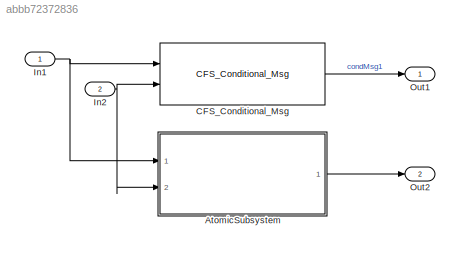
MODEL slx_abbb72372836
KIND model
CONFIG AbsTol = auto
CONFIG EnableMultiTasking = off
CONFIG FixedStep = 1
CONFIG MaxStep = auto
CONFIG MinStep = auto
CONFIG PreLoadFcn = load test_data.mat;
CONFIG RelTol = 1e-3
CONFIG SampleTimeConstraint = Unconstrained
CONFIG Solver = FixedStepDiscrete
CONFIG SolverName = FixedStepDiscrete
CONFIG StartTime = 0.0
CONFIG StopTime = 1
WORKSPACE source: MATLAB code (in-file)
WORKSPACE cmdLim = Simulink.Parameter
WORKSPACE code: cmdLim.Value = 15;
WORKSPACE code: cmdLim.Description = 'Limit for controlling the maximum surface command angle.';
WORKSPACE code: cmdLim.Min = 0;
WORKSPACE code: cmdLim.Max = 90;
WORKSPACE code: cmdLim.DocUnits = 'deg';
WORKSPACE dispGain = Simulink.Parameter
WORKSPACE code: dispGain.Value = 0.75;
WORKSPACE code: dispGain.Description = 'Gain applied to the displacement error.';
WORKSPACE code: dispGain.Min = 0;
WORKSPACE code: dispGain.Max = [];
WORKSPACE code: dispGain.DocUnits = 'deg/sec/deg';
WORKSPACE dispLim = Simulink.Parameter
WORKSPACE code: dispLim.Value = 30;
WORKSPACE code: dispLim.Description = 'Limit for controlling the maximum commanded angle.';
WORKSPACE code: dispLim.Min = 0;
WORKSPACE code: dispLim.Max = 180;
WORKSPACE code: dispLim.DocUnits = 'deg';
WORKSPACE intGain = Simulink.Parameter
WORKSPACE code: intGain.Value = 0.5;
WORKSPACE code: intGain.Description = 'Gain applied to the integral error.';
WORKSPACE code: intGain.Min = 0;
WORKSPACE code: intGain.Max = [];
WORKSPACE code: intGain.DocUnits = 'deg/sec/deg/sec';
WORKSPACE intLim = Simulink.Parameter
WORKSPACE code: intLim.Value = 5;
WORKSPACE code: intLim.Description = 'Limit for controlling the maximum commanded angle.';
WORKSPACE code: intLim.Min = 0;
WORKSPACE code: intLim.Max = 90;
WORKSPACE code: intLim.DocUnits = 'deg';
WORKSPACE rateGain = Simulink.Parameter
WORKSPACE code: rateGain.Value = 2;
WORKSPACE code: rateGain.Description = 'Gain applied to the rate error.';
WORKSPACE code: rateGain.Min = 0;
WORKSPACE code: rateGain.Max = [];
WORKSPACE code: rateGain.DocUnits = 'deg/deg/sec';
WORKSPACE rateLim = Simulink.Parameter
WORKSPACE code: rateLim.Value = 6;
WORKSPACE code: rateLim.Description = 'Limit for controlling the maximum commanded angle.';
WORKSPACE code: rateLim.Min = 0;
WORKSPACE code: rateLim.Max = 180;
WORKSPACE code: rateLim.DocUnits = 'deg/sec';
WORKSPACE hdgGain = Simulink.Parameter
WORKSPACE code: hdgGain.Value = 0.015;
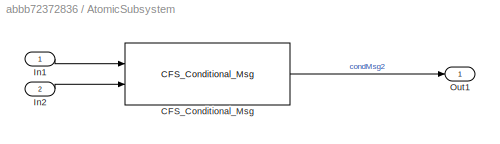
BLOCK [SubSystem] AtomicSubsystem
  Ports = [2, 1]
  RTWFcnNameOpts = Use subsystem name
  RTWFileNameOpts = Use subsystem name
  RTWSystemCode = Reusable function
  RequestExecContextInheritance = off
  TreatAsAtomicUnit = on
BLOCK [Reference] AtomicSubsystem/CFS_Conditional_Msg  REF=cfs_library/CFS_Conditional_Msg
  Ports = [2, 1]
  SourceBlock = cfs_library/CFS_Conditional_Msg
  SourceProductName = CFS Blockset
BLOCK [Inport] AtomicSubsystem/In1
  IconDisplay = Port number
  OutDataTypeStr = boolean
BLOCK [Inport] AtomicSubsystem/In2
  IconDisplay = Port number
  OutDataTypeStr = Bus: msgBus
  Port = 2
BLOCK [Outport] AtomicSubsystem/Out1
  IconDisplay = Port number
BLOCK [Reference] CFS_Conditional_Msg  REF=cfs_library/CFS_Conditional_Msg
  Ports = [2, 1]
  SourceBlock = cfs_library/CFS_Conditional_Msg
  SourceProductName = CFS Blockset
BLOCK [Inport] In1
  IconDisplay = Port number
  OutDataTypeStr = boolean
BLOCK [Inport] In2
  BusOutputAsStruct = on
  IconDisplay = Port number
  OutDataTypeStr = Bus: msgBus
  Port = 2
BLOCK [Outport] Out1
  IconDisplay = Port number
BLOCK [Outport] Out2
  IconDisplay = Port number
  Port = 2
LINE AtomicSubsystem/CFS_Conditional_Msg:1 -> AtomicSubsystem/Out1:1
LINE AtomicSubsystem/In1:1 -> AtomicSubsystem/CFS_Conditional_Msg:1
LINE AtomicSubsystem/In2:1 -> AtomicSubsystem/CFS_Conditional_Msg:2
LINE AtomicSubsystem:1 -> Out2:1
LINE CFS_Conditional_Msg:1 -> Out1:1
NET In1:1 -> AtomicSubsystem:1, CFS_Conditional_Msg:1
NET In2:1 -> AtomicSubsystem:2, CFS_Conditional_Msg:2
note: NET lines group one-source signal fan-out (src -> all destinations, sorted); 1:1 wires keep LINE
